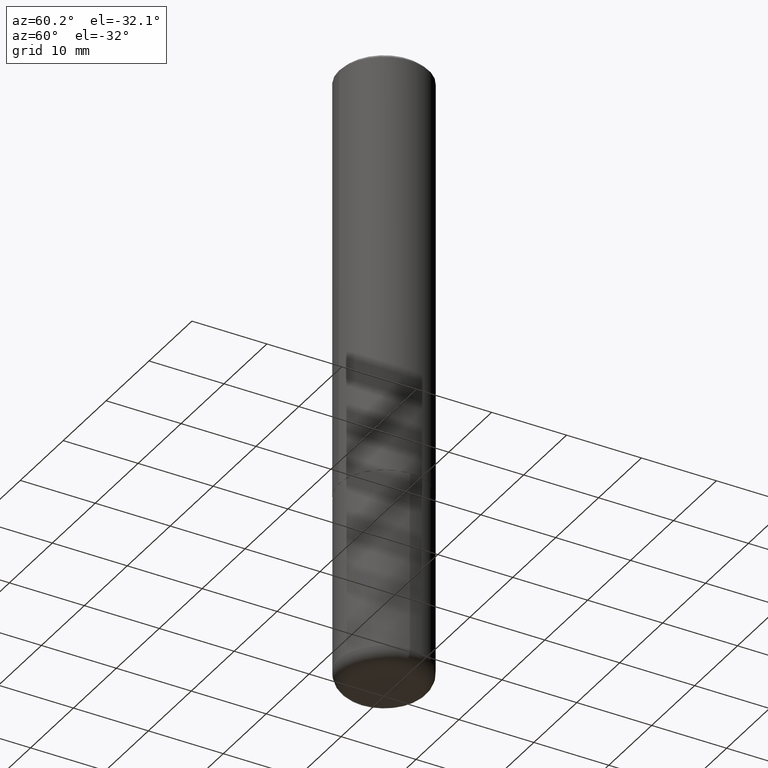
[diagram: clean part render]
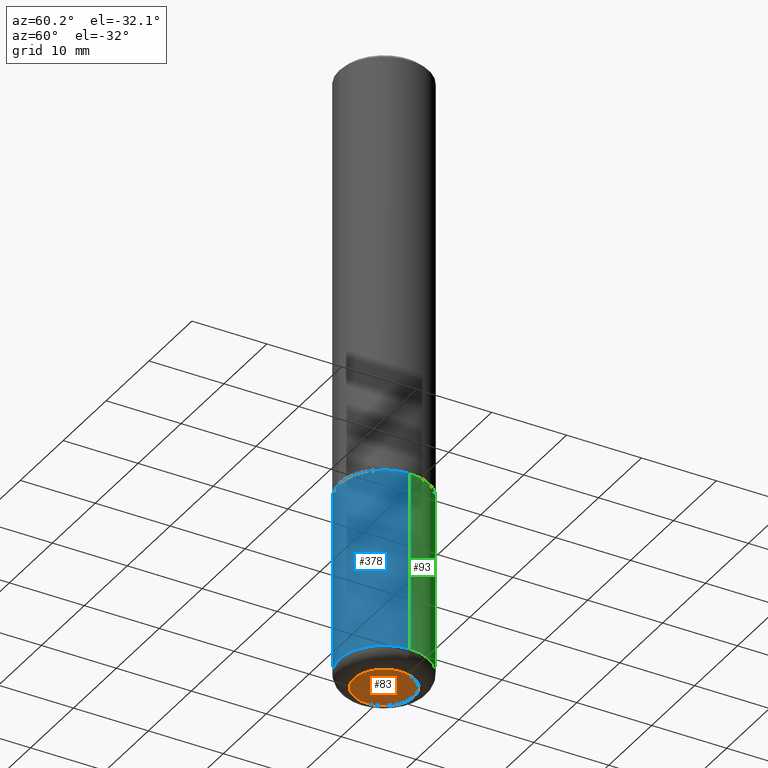
[diagram: same view with three faces highlighted in distinct colors, each labeled with its STEP entity id]
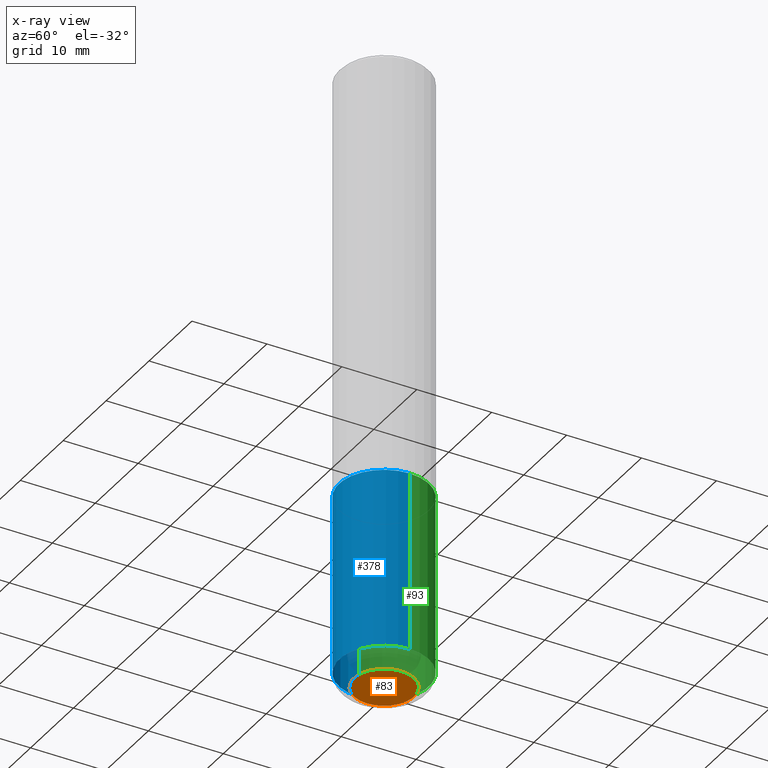
[diagram: x-ray of the same camera — body ghosted, the three highlighted faces saturated]
A machine part, auxiliary view with three faces highlighted in distinct colors.
The next image is the same camera in x-ray (body ghosted, the three faces saturated) — at least one of them is partly hidden behind the body in this view.
Their STEP definitions:

[orange] entity #83 — the highlighted planar face has unit normal (0, -0, -1).
#31 = ORIENTED_EDGE ( 'NONE', *, *, #79, .F. ) ;
#40 = CARTESIAN_POINT ( 'NONE',  ( -0.1575000000000000011, -9.873020404910514350E-15, -3.267700000000000049 ) ) ;
#48 = CARTESIAN_POINT ( 'NONE',  ( 7.991058417971171713E-29, -1.140911357093774644E-14, -3.267700000000000049 ) ) ;
#72 = DIRECTION ( 'NONE',  ( -2.445468806185136597E-29, 3.491481338843145583E-15, 1.000000000000000000 ) ) ;
#79 = EDGE_CURVE ( 'NONE', #332, #360, #106, .T. ) ;
#81 = AXIS2_PLACEMENT_3D ( 'NONE', #248, #291, #126 ) ;
#83 = ADVANCED_FACE ( 'NONE', ( #368 ), #252, .T. ) ;
#94 = DIRECTION ( 'NONE',  ( 2.438088387897960049E-29, -3.491481338843145188E-15, -1.000000000000000000 ) ) ;
#103 = CARTESIAN_POINT ( 'NONE',  ( 0.1575000000000000011, -1.250893019267333313E-14, -3.267700000000000049 ) ) ;
#106 = CIRCLE ( 'NONE', #81, 0.1575000000000000011 ) ;
#126 = DIRECTION ( 'NONE',  ( 1.000000000000000000, -6.982962677686261977E-15, 0.000000000000000000 ) ) ;
#157 = DIRECTION ( 'NONE',  ( -1.000000000000000000, 6.982962677686265922E-15, -4.876176775795935793E-29 ) ) ;
#161 = AXIS2_PLACEMENT_3D ( 'NONE', #388, #94, #157 ) ;
#197 = AXIS2_PLACEMENT_3D ( 'NONE', #48, #72, #261 ) ;
#223 = EDGE_LOOP ( 'NONE', ( #356, #31 ) ) ;
#248 = CARTESIAN_POINT ( 'NONE',  ( 7.991058417971171713E-29, -1.140911357093774644E-14, -3.267700000000000049 ) ) ;
#252 = PLANE ( 'NONE',  #161 ) ;
#261 = DIRECTION ( 'NONE',  ( 1.000000000000000000, -6.982962677686261977E-15, 0.000000000000000000 ) ) ;
#291 = DIRECTION ( 'NONE',  ( -2.445468806185136597E-29, 3.491481338843145583E-15, 1.000000000000000000 ) ) ;
#332 = VERTEX_POINT ( 'NONE', #40 ) ;
#356 = ORIENTED_EDGE ( 'NONE', *, *, #369, .F. ) ;
#360 = VERTEX_POINT ( 'NONE', #103 ) ;
#368 = FACE_OUTER_BOUND ( 'NONE', #223, .T. ) ;
#369 = EDGE_CURVE ( 'NONE', #360, #332, #383, .T. ) ;
#383 = CIRCLE ( 'NONE', #197, 0.1575000000000000011 ) ;
#388 = CARTESIAN_POINT ( 'NONE',  ( 7.991058417971171713E-29, -1.140911357093774644E-14, -3.267700000000000049 ) ) ;

[blue] entity #378 — the highlighted cylindrical surface (partial cylindrical patch) has radius 5.9995 mm, axis along (-0, 0, 1).
#4 = DIRECTION ( 'NONE',  ( -2.445468806185136597E-29, 3.491481338843145583E-15, 1.000000000000000000 ) ) ;
#11 = VECTOR ( 'NONE', #412, 39.37007874015748143 ) ;
#20 = LINE ( 'NONE', #140, #11 ) ;
#24 = EDGE_CURVE ( 'NONE', #192, #155, #195, .T. ) ;
#38 = CARTESIAN_POINT ( 'NONE',  ( 0.2361999999999999933, -1.649375784469496131E-15, 1.151752954443000088E-29 ) ) ;
#42 = ORIENTED_EDGE ( 'NONE', *, *, #207, .T. ) ;
#44 = CARTESIAN_POINT ( 'NONE',  ( -0.2361999999999999655, -9.456032047705438285E-15, -3.189000000000000501 ) ) ;
#50 = CYLINDRICAL_SURFACE ( 'NONE', #121, 0.2361999999999999933 ) ;
#60 = ORIENTED_EDGE ( 'NONE', *, *, #24, .T. ) ;
#73 = VERTEX_POINT ( 'NONE', #339 ) ;
#77 = CARTESIAN_POINT ( 'NONE',  ( 0.000000000000000000, 0.000000000000000000, 0.000000000000000000 ) ) ;
#100 = DIRECTION ( 'NONE',  ( -2.445468806185136597E-29, 3.491481338843145583E-15, 1.000000000000000000 ) ) ;
#121 = AXIS2_PLACEMENT_3D ( 'NONE', #77, #100, #137 ) ;
#127 = VECTOR ( 'NONE', #187, 39.37007874015748143 ) ;
#137 = DIRECTION ( 'NONE',  ( 1.000000000000000000, -6.982962677686266711E-15, 4.876176775795936353E-29 ) ) ;
#140 = CARTESIAN_POINT ( 'NONE',  ( -0.2361999999999999933, 1.678301941865356591E-15, -1.161852468318208757E-29 ) ) ;
#146 = EDGE_LOOP ( 'NONE', ( #417, #42, #60, #391 ) ) ;
#155 = VERTEX_POINT ( 'NONE', #269 ) ;
#179 = EDGE_CURVE ( 'NONE', #283, #73, #20, .T. ) ;
#180 = CARTESIAN_POINT ( 'NONE',  ( 5.487876547960065873E-29, -7.835233272497903917E-15, -2.244100000000000428 ) ) ;
#186 = DIRECTION ( 'NONE',  ( 1.000000000000000000, -6.982962677686265133E-15, 0.000000000000000000 ) ) ;
#187 = DIRECTION ( 'NONE',  ( -2.445468806185136877E-29, 3.491481338843145188E-15, 1.000000000000000000 ) ) ;
#192 = VERTEX_POINT ( 'NONE', #357 ) ;
#195 = LINE ( 'NONE', #38, #127 ) ;
#207 = EDGE_CURVE ( 'NONE', #283, #192, #308, .T. ) ;
#216 = CARTESIAN_POINT ( 'NONE',  ( 7.798600022924401307E-29, -1.113433398957079310E-14, -3.189000000000000501 ) ) ;
#241 = AXIS2_PLACEMENT_3D ( 'NONE', #180, #4, #318 ) ;
#242 = EDGE_CURVE ( 'NONE', #73, #155, #361, .T. ) ;
#256 = DIRECTION ( 'NONE',  ( -2.445468806185136597E-29, 3.491481338843145583E-15, 1.000000000000000000 ) ) ;
#269 = CARTESIAN_POINT ( 'NONE',  ( 0.2361999999999999933, -9.484609056967400443E-15, -2.244100000000000428 ) ) ;
#283 = VERTEX_POINT ( 'NONE', #44 ) ;
#308 = CIRCLE ( 'NONE', #416, 0.2361999999999999933 ) ;
#318 = DIRECTION ( 'NONE',  ( 1.000000000000000000, -6.982962677686269077E-15, 0.000000000000000000 ) ) ;
#339 = CARTESIAN_POINT ( 'NONE',  ( -0.2361999999999999933, -7.806481689168991326E-15, -2.244100000000000428 ) ) ;
#357 = CARTESIAN_POINT ( 'NONE',  ( 0.2361999999999999655, -1.278370977404028805E-14, -3.189000000000000501 ) ) ;
#361 = CIRCLE ( 'NONE', #241, 0.2361999999999999933 ) ;
#370 = FACE_OUTER_BOUND ( 'NONE', #146, .T. ) ;
#378 = ADVANCED_FACE ( 'NONE', ( #370 ), #50, .T. ) ;
#391 = ORIENTED_EDGE ( 'NONE', *, *, #242, .F. ) ;
#412 = DIRECTION ( 'NONE',  ( -2.445468806185136877E-29, 3.491481338843145188E-15, 1.000000000000000000 ) ) ;
#416 = AXIS2_PLACEMENT_3D ( 'NONE', #216, #256, #186 ) ;
#417 = ORIENTED_EDGE ( 'NONE', *, *, #179, .F. ) ;

[green] entity #93 — the highlighted cylindrical surface (partial cylindrical patch) has radius 5.9995 mm, axis along (-0, 0, 1).
#10 = CYLINDRICAL_SURFACE ( 'NONE', #312, 0.2361999999999999933 ) ;
#11 = VECTOR ( 'NONE', #412, 39.37007874015748143 ) ;
#20 = LINE ( 'NONE', #140, #11 ) ;
#23 = EDGE_CURVE ( 'NONE', #155, #73, #348, .T. ) ;
#24 = EDGE_CURVE ( 'NONE', #192, #155, #195, .T. ) ;
#38 = CARTESIAN_POINT ( 'NONE',  ( 0.2361999999999999933, -1.649375784469496131E-15, 1.151752954443000088E-29 ) ) ;
#44 = CARTESIAN_POINT ( 'NONE',  ( -0.2361999999999999655, -9.456032047705438285E-15, -3.189000000000000501 ) ) ;
#73 = VERTEX_POINT ( 'NONE', #339 ) ;
#93 = ADVANCED_FACE ( 'NONE', ( #213 ), #10, .T. ) ;
#99 = CARTESIAN_POINT ( 'NONE',  ( 0.000000000000000000, 0.000000000000000000, 0.000000000000000000 ) ) ;
#116 = DIRECTION ( 'NONE',  ( 1.000000000000000000, -6.982962677686265133E-15, 0.000000000000000000 ) ) ;
#120 = EDGE_CURVE ( 'NONE', #192, #283, #326, .T. ) ;
#127 = VECTOR ( 'NONE', #187, 39.37007874015748143 ) ;
#136 = DIRECTION ( 'NONE',  ( 1.000000000000000000, -6.982962677686266711E-15, 4.876176775795936353E-29 ) ) ;
#140 = CARTESIAN_POINT ( 'NONE',  ( -0.2361999999999999933, 1.678301941865356591E-15, -1.161852468318208757E-29 ) ) ;
#155 = VERTEX_POINT ( 'NONE', #269 ) ;
#177 = ORIENTED_EDGE ( 'NONE', *, *, #24, .F. ) ;
#179 = EDGE_CURVE ( 'NONE', #283, #73, #20, .T. ) ;
#187 = DIRECTION ( 'NONE',  ( -2.445468806185136877E-29, 3.491481338843145188E-15, 1.000000000000000000 ) ) ;
#192 = VERTEX_POINT ( 'NONE', #357 ) ;
#195 = LINE ( 'NONE', #38, #127 ) ;
#213 = FACE_OUTER_BOUND ( 'NONE', #302, .T. ) ;
#219 = ORIENTED_EDGE ( 'NONE', *, *, #23, .F. ) ;
#228 = ORIENTED_EDGE ( 'NONE', *, *, #120, .T. ) ;
#246 = CARTESIAN_POINT ( 'NONE',  ( 5.487876547960065873E-29, -7.835233272497903917E-15, -2.244100000000000428 ) ) ;
#255 = AXIS2_PLACEMENT_3D ( 'NONE', #280, #408, #116 ) ;
#269 = CARTESIAN_POINT ( 'NONE',  ( 0.2361999999999999933, -9.484609056967400443E-15, -2.244100000000000428 ) ) ;
#280 = CARTESIAN_POINT ( 'NONE',  ( 7.798600022924401307E-29, -1.113433398957079310E-14, -3.189000000000000501 ) ) ;
#283 = VERTEX_POINT ( 'NONE', #44 ) ;
#302 = EDGE_LOOP ( 'NONE', ( #228, #390, #219, #177 ) ) ;
#312 = AXIS2_PLACEMENT_3D ( 'NONE', #99, #343, #136 ) ;
#315 = AXIS2_PLACEMENT_3D ( 'NONE', #246, #359, #334 ) ;
#326 = CIRCLE ( 'NONE', #255, 0.2361999999999999933 ) ;
#334 = DIRECTION ( 'NONE',  ( 1.000000000000000000, -6.982962677686269077E-15, 0.000000000000000000 ) ) ;
#339 = CARTESIAN_POINT ( 'NONE',  ( -0.2361999999999999933, -7.806481689168991326E-15, -2.244100000000000428 ) ) ;
#343 = DIRECTION ( 'NONE',  ( -2.445468806185136597E-29, 3.491481338843145583E-15, 1.000000000000000000 ) ) ;
#348 = CIRCLE ( 'NONE', #315, 0.2361999999999999933 ) ;
#357 = CARTESIAN_POINT ( 'NONE',  ( 0.2361999999999999655, -1.278370977404028805E-14, -3.189000000000000501 ) ) ;
#359 = DIRECTION ( 'NONE',  ( -2.445468806185136597E-29, 3.491481338843145583E-15, 1.000000000000000000 ) ) ;
#390 = ORIENTED_EDGE ( 'NONE', *, *, #179, .T. ) ;
#408 = DIRECTION ( 'NONE',  ( -2.445468806185136597E-29, 3.491481338843145583E-15, 1.000000000000000000 ) ) ;
#412 = DIRECTION ( 'NONE',  ( -2.445468806185136877E-29, 3.491481338843145188E-15, 1.000000000000000000 ) ) ;